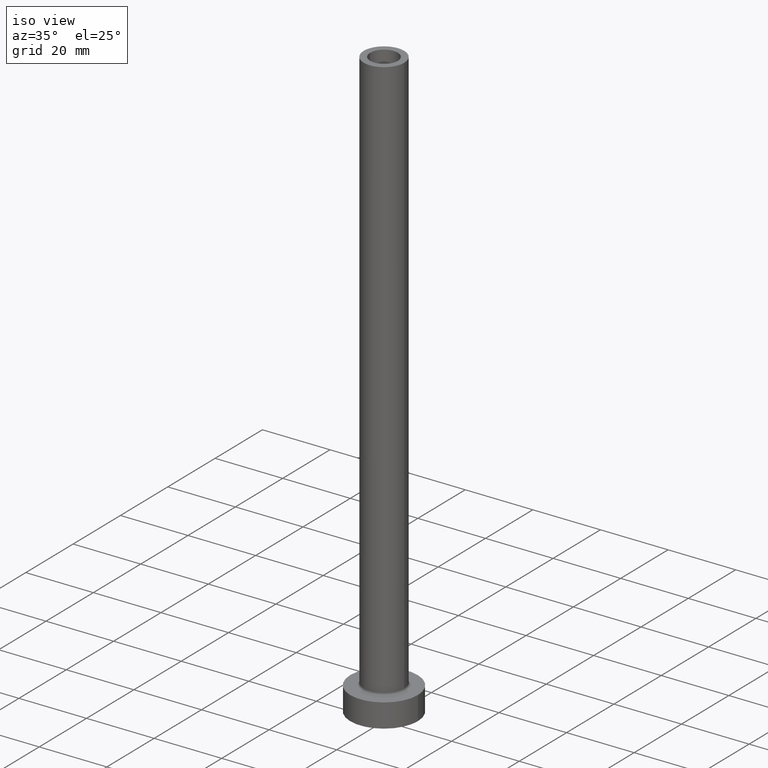
[diagram: clean part render]
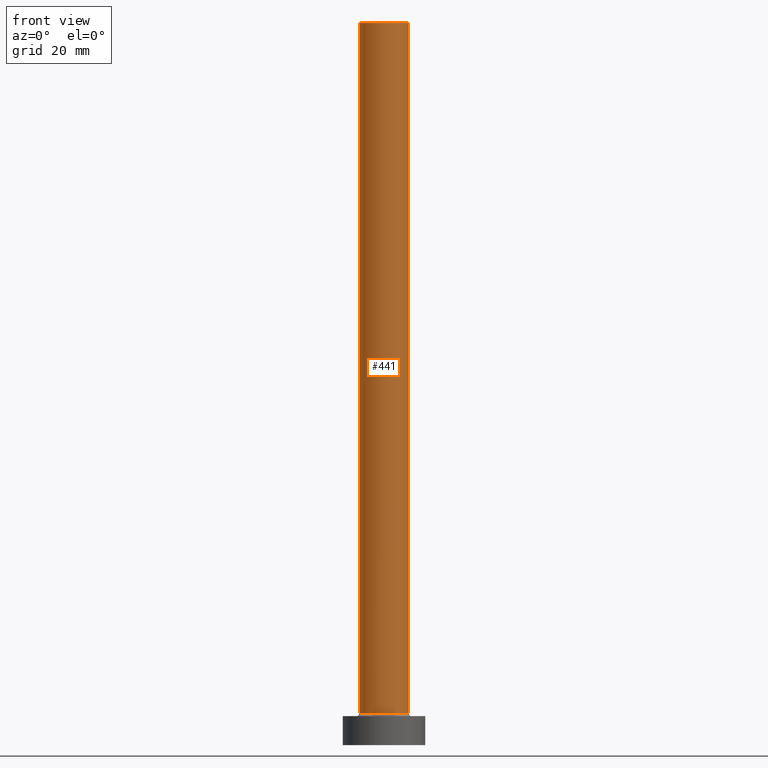
[diagram: tour spotlight — one face highlighted and labeled with its STEP entity id]
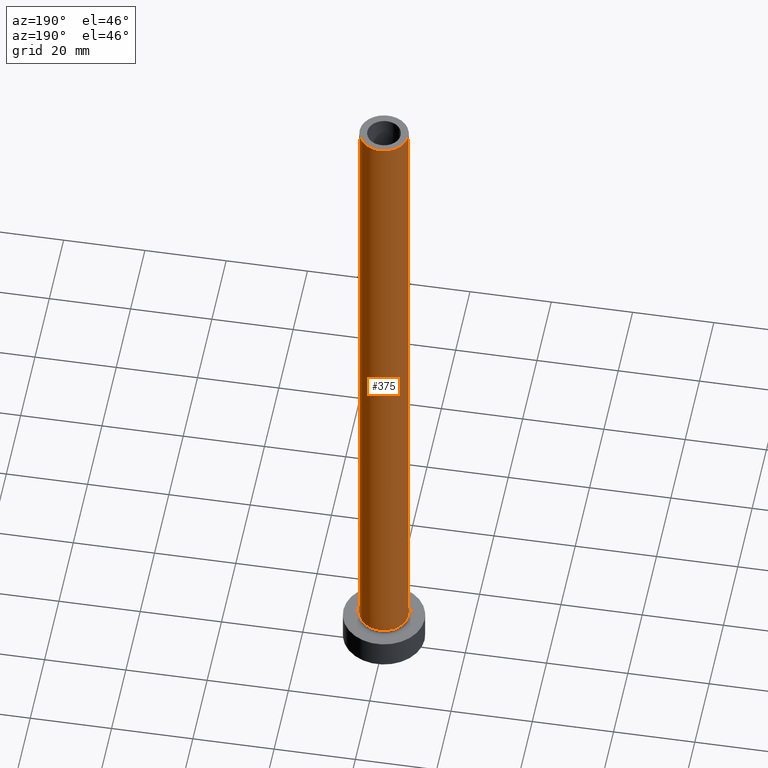
[diagram: tour spotlight — one face highlighted and labeled with its STEP entity id]
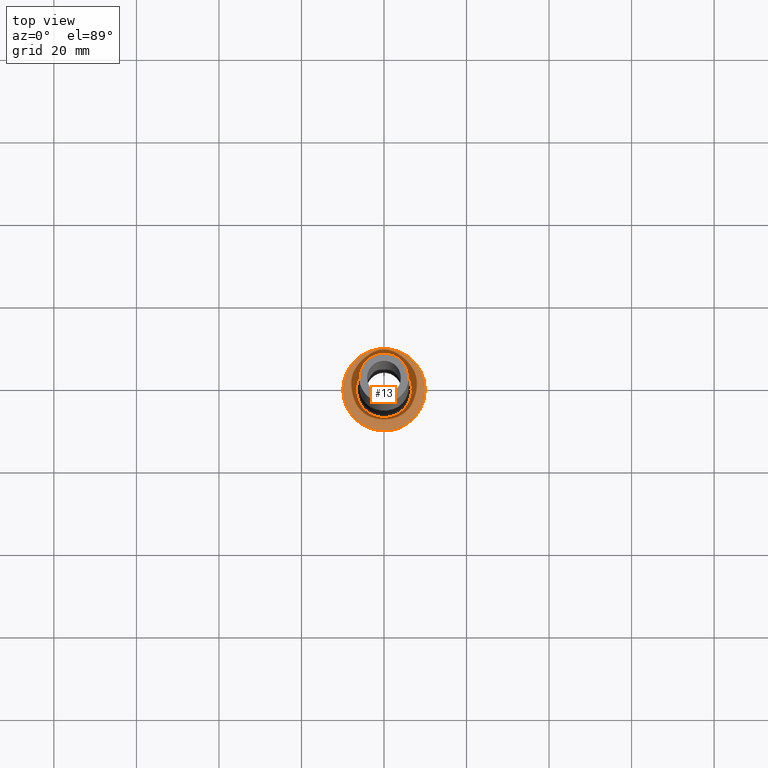
[diagram: tour spotlight — one face highlighted and labeled with its STEP entity id]
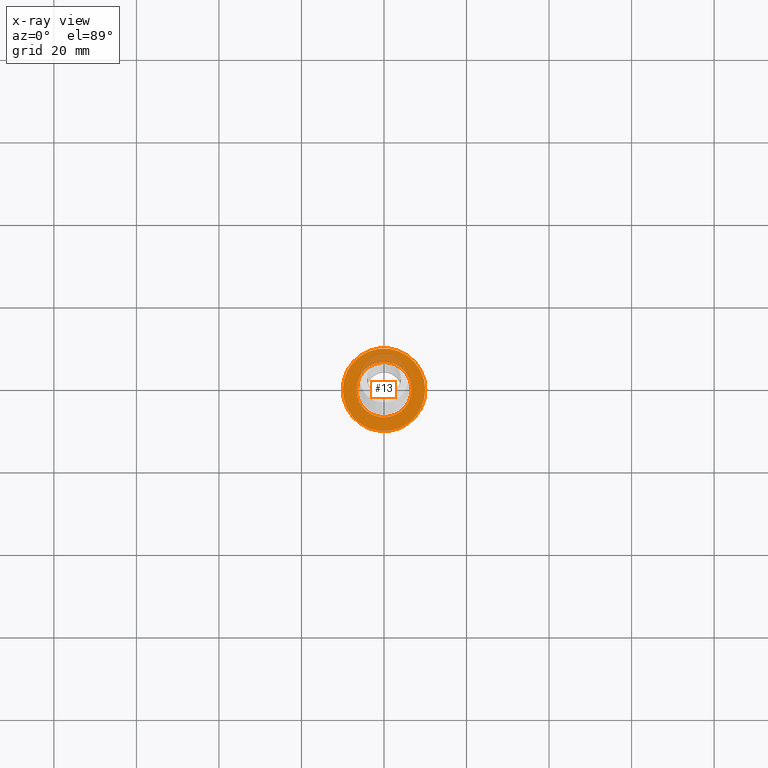
[diagram: x-ray of the same camera — body ghosted, this tour face saturated]
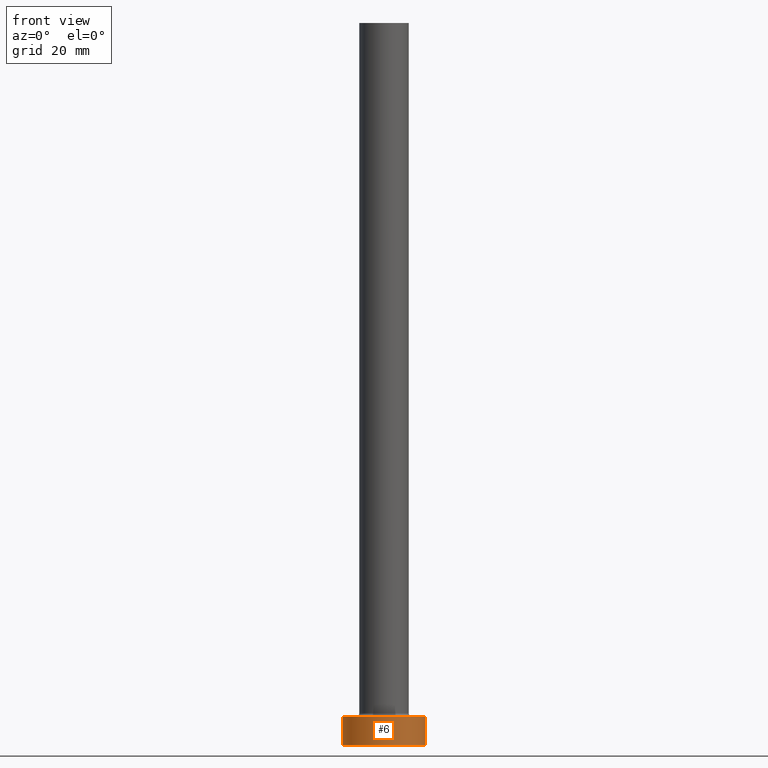
[diagram: tour spotlight — one face highlighted and labeled with its STEP entity id]
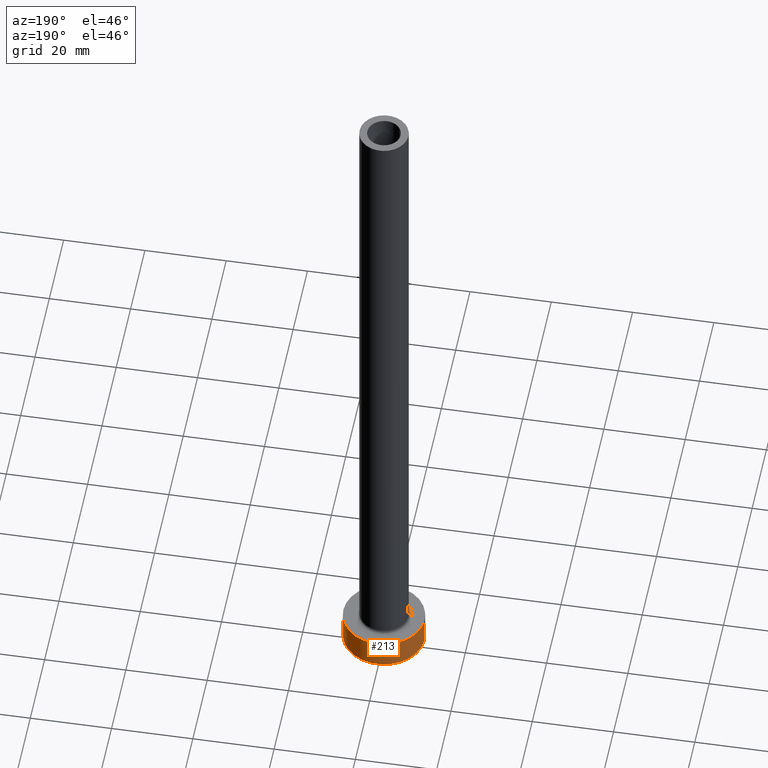
[diagram: tour spotlight — one face highlighted and labeled with its STEP entity id]
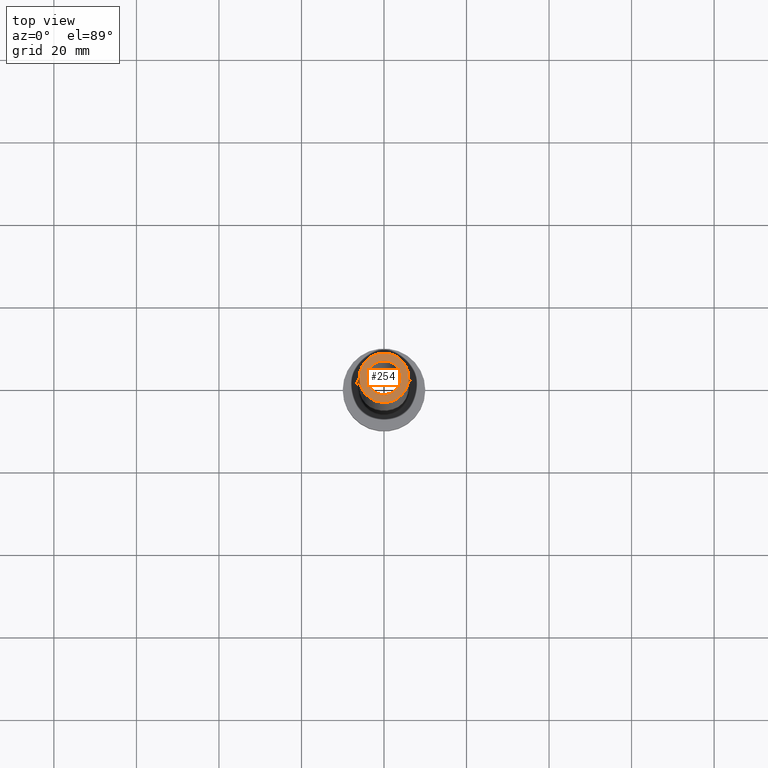
[diagram: tour spotlight — one face highlighted and labeled with its STEP entity id]
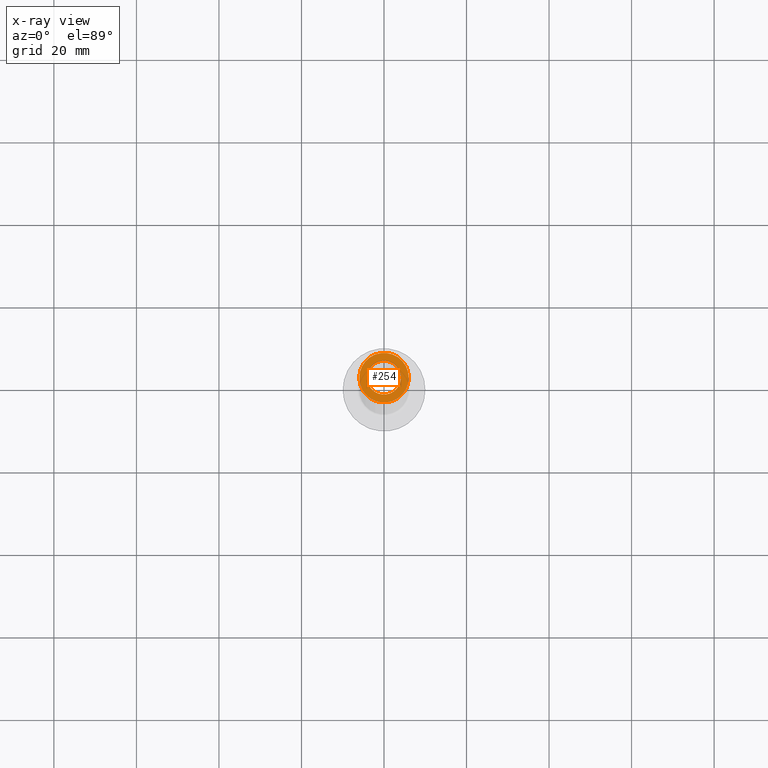
[diagram: x-ray of the same camera — body ghosted, this tour face saturated]
A machine part: a face-by-face anatomy tour. The part has 14 B-rep faces; the first image is the clean iso view, then the 6 largest visible faces are spotlighted one at a time (largest first), each with its STEP entity span.

Face 1 — front view, entity #441. In plain terms, the highlighted cylindrical surface (edge-blend (fillet) strip) has radius 6 mm, axis along (-0, -0, -1).
Definition (entity closure, byte-faithful):
#21 = DIRECTION ( 'NONE',  ( -0.000000000000000000, -0.000000000000000000, -1.000000000000000000 ) ) ;
#46 = VECTOR ( 'NONE', #21, 1000.000000000000000 ) ;
#47 = CARTESIAN_POINT ( 'NONE',  ( 6.000000000000000888, 7.347880794884119736E-16, 175.0000000000000284 ) ) ;
#48 = VECTOR ( 'NONE', #78, 1000.000000000000000 ) ;
#51 = CARTESIAN_POINT ( 'NONE',  ( -6.000000000000000888, 0.000000000000000000, 175.0000000000000284 ) ) ;
#72 = DIRECTION ( 'NONE',  ( 1.000000000000000000, 0.000000000000000000, 0.000000000000000000 ) ) ;
#78 = DIRECTION ( 'NONE',  ( -0.000000000000000000, -0.000000000000000000, -1.000000000000000000 ) ) ;
#86 = EDGE_CURVE ( 'NONE', #453, #230, #133, .T. ) ;
#88 = CIRCLE ( 'NONE', #287, 6.000000000000000888 ) ;
#93 = CARTESIAN_POINT ( 'NONE',  ( -6.000000000000000888, 0.000000000000000000, 175.0000000000000284 ) ) ;
#102 = EDGE_LOOP ( 'NONE', ( #312, #344, #428, #383 ) ) ;
#109 = VERTEX_POINT ( 'NONE', #47 ) ;
#123 = LINE ( 'NONE', #93, #46 ) ;
#133 = CIRCLE ( 'NONE', #334, 6.000000000000000888 ) ;
#147 = CARTESIAN_POINT ( 'NONE',  ( 0.000000000000000000, 0.000000000000000000, 7.700000000000012612 ) ) ;
#148 = CARTESIAN_POINT ( 'NONE',  ( 6.000000000000000888, 7.347880794884119736E-16, 7.700000000000012612 ) ) ;
#164 = FACE_OUTER_BOUND ( 'NONE', #102, .T. ) ;
#202 = DIRECTION ( 'NONE',  ( 0.000000000000000000, 0.000000000000000000, 1.000000000000000000 ) ) ;
#208 = LINE ( 'NONE', #394, #48 ) ;
#225 = EDGE_CURVE ( 'NONE', #109, #230, #208, .T. ) ;
#230 = VERTEX_POINT ( 'NONE', #148 ) ;
#256 = DIRECTION ( 'NONE',  ( 0.000000000000000000, 0.000000000000000000, 1.000000000000000000 ) ) ;
#271 = CARTESIAN_POINT ( 'NONE',  ( 0.000000000000000000, 0.000000000000000000, 175.0000000000000284 ) ) ;
#287 = AXIS2_PLACEMENT_3D ( 'NONE', #271, #202, #72 ) ;
#302 = EDGE_CURVE ( 'NONE', #386, #453, #123, .T. ) ;
#303 = CARTESIAN_POINT ( 'NONE',  ( 0.000000000000000000, 0.000000000000000000, 175.0000000000000284 ) ) ;
#312 = ORIENTED_EDGE ( 'NONE', *, *, #225, .F. ) ;
#334 = AXIS2_PLACEMENT_3D ( 'NONE', #147, #256, #402 ) ;
#339 = CARTESIAN_POINT ( 'NONE',  ( -6.000000000000000888, 0.000000000000000000, 7.700000000000012612 ) ) ;
#340 = AXIS2_PLACEMENT_3D ( 'NONE', #303, #414, #376 ) ;
#344 = ORIENTED_EDGE ( 'NONE', *, *, #399, .F. ) ;
#376 = DIRECTION ( 'NONE',  ( -1.000000000000000000, 0.000000000000000000, 0.000000000000000000 ) ) ;
#383 = ORIENTED_EDGE ( 'NONE', *, *, #86, .T. ) ;
#386 = VERTEX_POINT ( 'NONE', #51 ) ;
#394 = CARTESIAN_POINT ( 'NONE',  ( 6.000000000000000888, 7.347880794884119736E-16, 175.0000000000000284 ) ) ;
#399 = EDGE_CURVE ( 'NONE', #386, #109, #88, .T. ) ;
#402 = DIRECTION ( 'NONE',  ( 1.000000000000000000, 0.000000000000000000, 0.000000000000000000 ) ) ;
#414 = DIRECTION ( 'NONE',  ( -0.000000000000000000, -0.000000000000000000, -1.000000000000000000 ) ) ;
#428 = ORIENTED_EDGE ( 'NONE', *, *, #302, .T. ) ;
#441 = ADVANCED_FACE ( 'NONE', ( #164 ), #459, .T. ) ;
#453 = VERTEX_POINT ( 'NONE', #339 ) ;
#459 = CYLINDRICAL_SURFACE ( 'NONE', #340, 6.000000000000000888 ) ;

Face 2 — auxiliary view, entity #375. In plain terms, the highlighted cylindrical surface (edge-blend (fillet) strip) has radius 6 mm, axis along (-0, -0, -1).
Definition (entity closure, byte-faithful):
#21 = DIRECTION ( 'NONE',  ( -0.000000000000000000, -0.000000000000000000, -1.000000000000000000 ) ) ;
#27 = FACE_OUTER_BOUND ( 'NONE', #306, .T. ) ;
#45 = CARTESIAN_POINT ( 'NONE',  ( 0.000000000000000000, 0.000000000000000000, 175.0000000000000284 ) ) ;
#46 = VECTOR ( 'NONE', #21, 1000.000000000000000 ) ;
#47 = CARTESIAN_POINT ( 'NONE',  ( 6.000000000000000888, 7.347880794884119736E-16, 175.0000000000000284 ) ) ;
#48 = VECTOR ( 'NONE', #78, 1000.000000000000000 ) ;
#51 = CARTESIAN_POINT ( 'NONE',  ( -6.000000000000000888, 0.000000000000000000, 175.0000000000000284 ) ) ;
#78 = DIRECTION ( 'NONE',  ( -0.000000000000000000, -0.000000000000000000, -1.000000000000000000 ) ) ;
#81 = CARTESIAN_POINT ( 'NONE',  ( 0.000000000000000000, 0.000000000000000000, 7.700000000000012612 ) ) ;
#82 = DIRECTION ( 'NONE',  ( 0.000000000000000000, 0.000000000000000000, 1.000000000000000000 ) ) ;
#87 = CARTESIAN_POINT ( 'NONE',  ( 0.000000000000000000, 0.000000000000000000, 175.0000000000000284 ) ) ;
#93 = CARTESIAN_POINT ( 'NONE',  ( -6.000000000000000888, 0.000000000000000000, 175.0000000000000284 ) ) ;
#97 = ORIENTED_EDGE ( 'NONE', *, *, #302, .F. ) ;
#103 = EDGE_CURVE ( 'NONE', #109, #386, #355, .T. ) ;
#109 = VERTEX_POINT ( 'NONE', #47 ) ;
#123 = LINE ( 'NONE', #93, #46 ) ;
#148 = CARTESIAN_POINT ( 'NONE',  ( 6.000000000000000888, 7.347880794884119736E-16, 7.700000000000012612 ) ) ;
#159 = CYLINDRICAL_SURFACE ( 'NONE', #227, 6.000000000000000888 ) ;
#208 = LINE ( 'NONE', #394, #48 ) ;
#214 = DIRECTION ( 'NONE',  ( 0.000000000000000000, 0.000000000000000000, 1.000000000000000000 ) ) ;
#225 = EDGE_CURVE ( 'NONE', #109, #230, #208, .T. ) ;
#227 = AXIS2_PLACEMENT_3D ( 'NONE', #87, #365, #296 ) ;
#230 = VERTEX_POINT ( 'NONE', #148 ) ;
#242 = CIRCLE ( 'NONE', #257, 6.000000000000000888 ) ;
#248 = EDGE_CURVE ( 'NONE', #230, #453, #242, .T. ) ;
#250 = ORIENTED_EDGE ( 'NONE', *, *, #248, .T. ) ;
#257 = AXIS2_PLACEMENT_3D ( 'NONE', #81, #214, #360 ) ;
#269 = ORIENTED_EDGE ( 'NONE', *, *, #225, .T. ) ;
#279 = ORIENTED_EDGE ( 'NONE', *, *, #103, .F. ) ;
#284 = AXIS2_PLACEMENT_3D ( 'NONE', #45, #82, #361 ) ;
#296 = DIRECTION ( 'NONE',  ( -1.000000000000000000, 0.000000000000000000, 0.000000000000000000 ) ) ;
#302 = EDGE_CURVE ( 'NONE', #386, #453, #123, .T. ) ;
#306 = EDGE_LOOP ( 'NONE', ( #279, #269, #250, #97 ) ) ;
#339 = CARTESIAN_POINT ( 'NONE',  ( -6.000000000000000888, 0.000000000000000000, 7.700000000000012612 ) ) ;
#355 = CIRCLE ( 'NONE', #284, 6.000000000000000888 ) ;
#360 = DIRECTION ( 'NONE',  ( 1.000000000000000000, 0.000000000000000000, 0.000000000000000000 ) ) ;
#361 = DIRECTION ( 'NONE',  ( 1.000000000000000000, 0.000000000000000000, 0.000000000000000000 ) ) ;
#365 = DIRECTION ( 'NONE',  ( -0.000000000000000000, -0.000000000000000000, -1.000000000000000000 ) ) ;
#375 = ADVANCED_FACE ( 'NONE', ( #27 ), #159, .T. ) ;
#386 = VERTEX_POINT ( 'NONE', #51 ) ;
#394 = CARTESIAN_POINT ( 'NONE',  ( 6.000000000000000888, 7.347880794884119736E-16, 175.0000000000000284 ) ) ;
#453 = VERTEX_POINT ( 'NONE', #339 ) ;

Face 3 — top view, entity #13. An x-ray twin of the same camera follows (body ghosted, this face saturated) — the face is partly hidden behind the body. In plain terms, the highlighted planar face has unit normal (0, 0, 1).
Definition (entity closure, byte-faithful):
#2 = VERTEX_POINT ( 'NONE', #283 ) ;
#4 = VERTEX_POINT ( 'NONE', #258 ) ;
#10 = FACE_BOUND ( 'NONE', #198, .T. ) ;
#13 = ADVANCED_FACE ( 'NONE', ( #10, #401 ), #180, .T. ) ;
#37 = ORIENTED_EDGE ( 'NONE', *, *, #234, .T. ) ;
#59 = EDGE_CURVE ( 'NONE', #2, #68, #157, .T. ) ;
#62 = AXIS2_PLACEMENT_3D ( 'NONE', #359, #118, #393 ) ;
#68 = VERTEX_POINT ( 'NONE', #120 ) ;
#69 = EDGE_CURVE ( 'NONE', #68, #2, #319, .T. ) ;
#118 = DIRECTION ( 'NONE',  ( 0.000000000000000000, 0.000000000000000000, 1.000000000000000000 ) ) ;
#120 = CARTESIAN_POINT ( 'NONE',  ( 6.700000000000001066, 0.000000000000000000, 7.000000000000006217 ) ) ;
#152 = CARTESIAN_POINT ( 'NONE',  ( 0.000000000000000000, 0.000000000000000000, 7.000000000000000000 ) ) ;
#157 = CIRCLE ( 'NONE', #404, 6.700000000000001066 ) ;
#180 = PLANE ( 'NONE',  #62 ) ;
#198 = EDGE_LOOP ( 'NONE', ( #389, #350 ) ) ;
#223 = CARTESIAN_POINT ( 'NONE',  ( 0.000000000000000000, 0.000000000000000000, 7.000000000000000000 ) ) ;
#234 = EDGE_CURVE ( 'NONE', #4, #455, #416, .T. ) ;
#251 = DIRECTION ( 'NONE',  ( -0.000000000000000000, -0.000000000000000000, -1.000000000000000000 ) ) ;
#255 = DIRECTION ( 'NONE',  ( 0.000000000000000000, 0.000000000000000000, 1.000000000000000000 ) ) ;
#258 = CARTESIAN_POINT ( 'NONE',  ( 10.00000000000000000, 1.224646799147353256E-15, 7.000000000000000000 ) ) ;
#260 = AXIS2_PLACEMENT_3D ( 'NONE', #152, #251, #433 ) ;
#261 = DIRECTION ( 'NONE',  ( 0.000000000000000000, 0.000000000000000000, 1.000000000000000000 ) ) ;
#283 = CARTESIAN_POINT ( 'NONE',  ( -6.700000000000001066, 8.205133554287267548E-16, 7.000000000000006217 ) ) ;
#290 = CIRCLE ( 'NONE', #391, 10.00000000000000000 ) ;
#291 = ORIENTED_EDGE ( 'NONE', *, *, #348, .T. ) ;
#298 = CARTESIAN_POINT ( 'NONE',  ( -10.00000000000000000, 0.000000000000000000, 7.000000000000000000 ) ) ;
#309 = EDGE_LOOP ( 'NONE', ( #291, #37 ) ) ;
#319 = CIRCLE ( 'NONE', #260, 6.700000000000001066 ) ;
#327 = DIRECTION ( 'NONE',  ( 1.000000000000000000, 0.000000000000000000, 0.000000000000000000 ) ) ;
#348 = EDGE_CURVE ( 'NONE', #455, #4, #290, .T. ) ;
#350 = ORIENTED_EDGE ( 'NONE', *, *, #59, .T. ) ;
#359 = CARTESIAN_POINT ( 'NONE',  ( 0.000000000000000000, 0.000000000000000000, 7.000000000000000000 ) ) ;
#370 = DIRECTION ( 'NONE',  ( 1.000000000000000000, 0.000000000000000000, 0.000000000000000000 ) ) ;
#389 = ORIENTED_EDGE ( 'NONE', *, *, #69, .T. ) ;
#391 = AXIS2_PLACEMENT_3D ( 'NONE', #223, #261, #370 ) ;
#393 = DIRECTION ( 'NONE',  ( 1.000000000000000000, 0.000000000000000000, -0.000000000000000000 ) ) ;
#396 = DIRECTION ( 'NONE',  ( 1.000000000000000000, 0.000000000000000000, 0.000000000000000000 ) ) ;
#401 = FACE_OUTER_BOUND ( 'NONE', #309, .T. ) ;
#404 = AXIS2_PLACEMENT_3D ( 'NONE', #440, #431, #327 ) ;
#408 = AXIS2_PLACEMENT_3D ( 'NONE', #434, #255, #396 ) ;
#416 = CIRCLE ( 'NONE', #408, 10.00000000000000000 ) ;
#431 = DIRECTION ( 'NONE',  ( -0.000000000000000000, -0.000000000000000000, -1.000000000000000000 ) ) ;
#433 = DIRECTION ( 'NONE',  ( 1.000000000000000000, 0.000000000000000000, 0.000000000000000000 ) ) ;
#434 = CARTESIAN_POINT ( 'NONE',  ( 0.000000000000000000, 0.000000000000000000, 7.000000000000000000 ) ) ;
#440 = CARTESIAN_POINT ( 'NONE',  ( 0.000000000000000000, 0.000000000000000000, 7.000000000000000000 ) ) ;
#455 = VERTEX_POINT ( 'NONE', #298 ) ;

Face 4 — front view, entity #6. In plain terms, the highlighted cylindrical surface (partial cylindrical patch) has radius 10 mm, axis along (-0, -0, -1).
Definition (entity closure, byte-faithful):
#4 = VERTEX_POINT ( 'NONE', #258 ) ;
#6 = ADVANCED_FACE ( 'NONE', ( #435 ), #281, .T. ) ;
#8 = DIRECTION ( 'NONE',  ( 1.000000000000000000, 0.000000000000000000, 0.000000000000000000 ) ) ;
#33 = ORIENTED_EDGE ( 'NONE', *, *, #188, .T. ) ;
#43 = CARTESIAN_POINT ( 'NONE',  ( 0.000000000000000000, 0.000000000000000000, 7.000000000000000000 ) ) ;
#67 = AXIS2_PLACEMENT_3D ( 'NONE', #427, #114, #8 ) ;
#71 = EDGE_LOOP ( 'NONE', ( #272, #135, #417, #33 ) ) ;
#108 = AXIS2_PLACEMENT_3D ( 'NONE', #43, #111, #323 ) ;
#111 = DIRECTION ( 'NONE',  ( -0.000000000000000000, -0.000000000000000000, -1.000000000000000000 ) ) ;
#112 = CIRCLE ( 'NONE', #67, 10.00000000000000000 ) ;
#114 = DIRECTION ( 'NONE',  ( 0.000000000000000000, 0.000000000000000000, 1.000000000000000000 ) ) ;
#135 = ORIENTED_EDGE ( 'NONE', *, *, #348, .F. ) ;
#154 = EDGE_CURVE ( 'NONE', #4, #166, #178, .T. ) ;
#166 = VERTEX_POINT ( 'NONE', #174 ) ;
#174 = CARTESIAN_POINT ( 'NONE',  ( 10.00000000000000000, 1.224646799147353256E-15, 0.000000000000000000 ) ) ;
#178 = LINE ( 'NONE', #362, #307 ) ;
#188 = EDGE_CURVE ( 'NONE', #390, #166, #112, .T. ) ;
#223 = CARTESIAN_POINT ( 'NONE',  ( 0.000000000000000000, 0.000000000000000000, 7.000000000000000000 ) ) ;
#247 = CARTESIAN_POINT ( 'NONE',  ( -10.00000000000000000, 0.000000000000000000, 7.000000000000000000 ) ) ;
#258 = CARTESIAN_POINT ( 'NONE',  ( 10.00000000000000000, 1.224646799147353256E-15, 7.000000000000000000 ) ) ;
#261 = DIRECTION ( 'NONE',  ( 0.000000000000000000, 0.000000000000000000, 1.000000000000000000 ) ) ;
#272 = ORIENTED_EDGE ( 'NONE', *, *, #154, .F. ) ;
#278 = DIRECTION ( 'NONE',  ( -0.000000000000000000, -0.000000000000000000, -1.000000000000000000 ) ) ;
#281 = CYLINDRICAL_SURFACE ( 'NONE', #108, 10.00000000000000000 ) ;
#285 = DIRECTION ( 'NONE',  ( -0.000000000000000000, -0.000000000000000000, -1.000000000000000000 ) ) ;
#290 = CIRCLE ( 'NONE', #391, 10.00000000000000000 ) ;
#298 = CARTESIAN_POINT ( 'NONE',  ( -10.00000000000000000, 0.000000000000000000, 7.000000000000000000 ) ) ;
#307 = VECTOR ( 'NONE', #285, 1000.000000000000000 ) ;
#323 = DIRECTION ( 'NONE',  ( -1.000000000000000000, 0.000000000000000000, 0.000000000000000000 ) ) ;
#329 = CARTESIAN_POINT ( 'NONE',  ( -10.00000000000000000, 0.000000000000000000, 0.000000000000000000 ) ) ;
#348 = EDGE_CURVE ( 'NONE', #455, #4, #290, .T. ) ;
#362 = CARTESIAN_POINT ( 'NONE',  ( 10.00000000000000000, 1.224646799147353256E-15, 7.000000000000000000 ) ) ;
#370 = DIRECTION ( 'NONE',  ( 1.000000000000000000, 0.000000000000000000, 0.000000000000000000 ) ) ;
#390 = VERTEX_POINT ( 'NONE', #329 ) ;
#391 = AXIS2_PLACEMENT_3D ( 'NONE', #223, #261, #370 ) ;
#406 = EDGE_CURVE ( 'NONE', #455, #390, #426, .T. ) ;
#417 = ORIENTED_EDGE ( 'NONE', *, *, #406, .T. ) ;
#426 = LINE ( 'NONE', #247, #451 ) ;
#427 = CARTESIAN_POINT ( 'NONE',  ( 0.000000000000000000, 0.000000000000000000, 0.000000000000000000 ) ) ;
#435 = FACE_OUTER_BOUND ( 'NONE', #71, .T. ) ;
#451 = VECTOR ( 'NONE', #278, 1000.000000000000000 ) ;
#455 = VERTEX_POINT ( 'NONE', #298 ) ;

Face 5 — auxiliary view, entity #213. In plain terms, the highlighted cylindrical surface (partial cylindrical patch) has radius 10 mm, axis along (-0, -0, -1).
Definition (entity closure, byte-faithful):
#4 = VERTEX_POINT ( 'NONE', #258 ) ;
#16 = CIRCLE ( 'NONE', #165, 10.00000000000000000 ) ;
#18 = DIRECTION ( 'NONE',  ( 1.000000000000000000, 0.000000000000000000, 0.000000000000000000 ) ) ;
#99 = ORIENTED_EDGE ( 'NONE', *, *, #234, .F. ) ;
#110 = DIRECTION ( 'NONE',  ( -1.000000000000000000, 0.000000000000000000, 0.000000000000000000 ) ) ;
#119 = EDGE_CURVE ( 'NONE', #166, #390, #16, .T. ) ;
#154 = EDGE_CURVE ( 'NONE', #4, #166, #178, .T. ) ;
#163 = EDGE_LOOP ( 'NONE', ( #99, #308, #313, #311 ) ) ;
#165 = AXIS2_PLACEMENT_3D ( 'NONE', #184, #325, #18 ) ;
#166 = VERTEX_POINT ( 'NONE', #174 ) ;
#174 = CARTESIAN_POINT ( 'NONE',  ( 10.00000000000000000, 1.224646799147353256E-15, 0.000000000000000000 ) ) ;
#178 = LINE ( 'NONE', #362, #307 ) ;
#181 = FACE_OUTER_BOUND ( 'NONE', #163, .T. ) ;
#184 = CARTESIAN_POINT ( 'NONE',  ( 0.000000000000000000, 0.000000000000000000, 0.000000000000000000 ) ) ;
#213 = ADVANCED_FACE ( 'NONE', ( #181 ), #252, .T. ) ;
#234 = EDGE_CURVE ( 'NONE', #4, #455, #416, .T. ) ;
#247 = CARTESIAN_POINT ( 'NONE',  ( -10.00000000000000000, 0.000000000000000000, 7.000000000000000000 ) ) ;
#252 = CYLINDRICAL_SURFACE ( 'NONE', #297, 10.00000000000000000 ) ;
#255 = DIRECTION ( 'NONE',  ( 0.000000000000000000, 0.000000000000000000, 1.000000000000000000 ) ) ;
#258 = CARTESIAN_POINT ( 'NONE',  ( 10.00000000000000000, 1.224646799147353256E-15, 7.000000000000000000 ) ) ;
#278 = DIRECTION ( 'NONE',  ( -0.000000000000000000, -0.000000000000000000, -1.000000000000000000 ) ) ;
#285 = DIRECTION ( 'NONE',  ( -0.000000000000000000, -0.000000000000000000, -1.000000000000000000 ) ) ;
#297 = AXIS2_PLACEMENT_3D ( 'NONE', #430, #392, #110 ) ;
#298 = CARTESIAN_POINT ( 'NONE',  ( -10.00000000000000000, 0.000000000000000000, 7.000000000000000000 ) ) ;
#307 = VECTOR ( 'NONE', #285, 1000.000000000000000 ) ;
#308 = ORIENTED_EDGE ( 'NONE', *, *, #154, .T. ) ;
#311 = ORIENTED_EDGE ( 'NONE', *, *, #406, .F. ) ;
#313 = ORIENTED_EDGE ( 'NONE', *, *, #119, .T. ) ;
#325 = DIRECTION ( 'NONE',  ( 0.000000000000000000, 0.000000000000000000, 1.000000000000000000 ) ) ;
#329 = CARTESIAN_POINT ( 'NONE',  ( -10.00000000000000000, 0.000000000000000000, 0.000000000000000000 ) ) ;
#362 = CARTESIAN_POINT ( 'NONE',  ( 10.00000000000000000, 1.224646799147353256E-15, 7.000000000000000000 ) ) ;
#390 = VERTEX_POINT ( 'NONE', #329 ) ;
#392 = DIRECTION ( 'NONE',  ( -0.000000000000000000, -0.000000000000000000, -1.000000000000000000 ) ) ;
#396 = DIRECTION ( 'NONE',  ( 1.000000000000000000, 0.000000000000000000, 0.000000000000000000 ) ) ;
#406 = EDGE_CURVE ( 'NONE', #455, #390, #426, .T. ) ;
#408 = AXIS2_PLACEMENT_3D ( 'NONE', #434, #255, #396 ) ;
#416 = CIRCLE ( 'NONE', #408, 10.00000000000000000 ) ;
#426 = LINE ( 'NONE', #247, #451 ) ;
#430 = CARTESIAN_POINT ( 'NONE',  ( 0.000000000000000000, 0.000000000000000000, 7.000000000000000000 ) ) ;
#434 = CARTESIAN_POINT ( 'NONE',  ( 0.000000000000000000, 0.000000000000000000, 7.000000000000000000 ) ) ;
#451 = VECTOR ( 'NONE', #278, 1000.000000000000000 ) ;
#455 = VERTEX_POINT ( 'NONE', #298 ) ;

Face 6 — top view, entity #254. An x-ray twin of the same camera follows (body ghosted, this face saturated) — the face is partly hidden behind the body. In plain terms, the highlighted planar face has unit normal (0, 0, 1).
Definition (entity closure, byte-faithful):
#40 = EDGE_LOOP ( 'NONE', ( #131, #461 ) ) ;
#45 = CARTESIAN_POINT ( 'NONE',  ( 0.000000000000000000, 0.000000000000000000, 175.0000000000000284 ) ) ;
#47 = CARTESIAN_POINT ( 'NONE',  ( 6.000000000000000888, 7.347880794884119736E-16, 175.0000000000000284 ) ) ;
#51 = CARTESIAN_POINT ( 'NONE',  ( -6.000000000000000888, 0.000000000000000000, 175.0000000000000284 ) ) ;
#53 = CIRCLE ( 'NONE', #130, 4.099999999999999645 ) ;
#54 = FACE_BOUND ( 'NONE', #169, .T. ) ;
#66 = VERTEX_POINT ( 'NONE', #216 ) ;
#72 = DIRECTION ( 'NONE',  ( 1.000000000000000000, 0.000000000000000000, 0.000000000000000000 ) ) ;
#82 = DIRECTION ( 'NONE',  ( 0.000000000000000000, 0.000000000000000000, 1.000000000000000000 ) ) ;
#83 = DIRECTION ( 'NONE',  ( 0.000000000000000000, 0.000000000000000000, 1.000000000000000000 ) ) ;
#88 = CIRCLE ( 'NONE', #287, 6.000000000000000888 ) ;
#90 = FACE_OUTER_BOUND ( 'NONE', #40, .T. ) ;
#103 = EDGE_CURVE ( 'NONE', #109, #386, #355, .T. ) ;
#107 = CARTESIAN_POINT ( 'NONE',  ( -4.099999999999999645, 0.000000000000000000, 175.0000000000000284 ) ) ;
#109 = VERTEX_POINT ( 'NONE', #47 ) ;
#127 = CARTESIAN_POINT ( 'NONE',  ( 0.000000000000000000, 0.000000000000000000, 175.0000000000000284 ) ) ;
#130 = AXIS2_PLACEMENT_3D ( 'NONE', #400, #83, #217 ) ;
#131 = ORIENTED_EDGE ( 'NONE', *, *, #399, .T. ) ;
#142 = AXIS2_PLACEMENT_3D ( 'NONE', #127, #345, #197 ) ;
#151 = EDGE_CURVE ( 'NONE', #162, #66, #53, .T. ) ;
#156 = CIRCLE ( 'NONE', #142, 4.099999999999999645 ) ;
#162 = VERTEX_POINT ( 'NONE', #107 ) ;
#169 = EDGE_LOOP ( 'NONE', ( #243, #304 ) ) ;
#197 = DIRECTION ( 'NONE',  ( 1.000000000000000000, 0.000000000000000000, 0.000000000000000000 ) ) ;
#202 = DIRECTION ( 'NONE',  ( 0.000000000000000000, 0.000000000000000000, 1.000000000000000000 ) ) ;
#216 = CARTESIAN_POINT ( 'NONE',  ( 4.099999999999999645, 5.021051876504147385E-16, 175.0000000000000284 ) ) ;
#217 = DIRECTION ( 'NONE',  ( 1.000000000000000000, 0.000000000000000000, 0.000000000000000000 ) ) ;
#243 = ORIENTED_EDGE ( 'NONE', *, *, #151, .F. ) ;
#254 = ADVANCED_FACE ( 'NONE', ( #54, #90 ), #293, .T. ) ;
#271 = CARTESIAN_POINT ( 'NONE',  ( 0.000000000000000000, 0.000000000000000000, 175.0000000000000284 ) ) ;
#284 = AXIS2_PLACEMENT_3D ( 'NONE', #45, #82, #361 ) ;
#287 = AXIS2_PLACEMENT_3D ( 'NONE', #271, #202, #72 ) ;
#293 = PLANE ( 'NONE',  #321 ) ;
#299 = DIRECTION ( 'NONE',  ( 0.000000000000000000, 0.000000000000000000, 1.000000000000000000 ) ) ;
#304 = ORIENTED_EDGE ( 'NONE', *, *, #449, .F. ) ;
#321 = AXIS2_PLACEMENT_3D ( 'NONE', #452, #299, #405 ) ;
#345 = DIRECTION ( 'NONE',  ( 0.000000000000000000, 0.000000000000000000, 1.000000000000000000 ) ) ;
#355 = CIRCLE ( 'NONE', #284, 6.000000000000000888 ) ;
#361 = DIRECTION ( 'NONE',  ( 1.000000000000000000, 0.000000000000000000, 0.000000000000000000 ) ) ;
#386 = VERTEX_POINT ( 'NONE', #51 ) ;
#399 = EDGE_CURVE ( 'NONE', #386, #109, #88, .T. ) ;
#400 = CARTESIAN_POINT ( 'NONE',  ( 0.000000000000000000, 0.000000000000000000, 175.0000000000000284 ) ) ;
#405 = DIRECTION ( 'NONE',  ( 1.000000000000000000, 0.000000000000000000, -0.000000000000000000 ) ) ;
#449 = EDGE_CURVE ( 'NONE', #66, #162, #156, .T. ) ;
#452 = CARTESIAN_POINT ( 'NONE',  ( 0.000000000000000000, 0.000000000000000000, 175.0000000000000284 ) ) ;
#461 = ORIENTED_EDGE ( 'NONE', *, *, #103, .T. ) ;